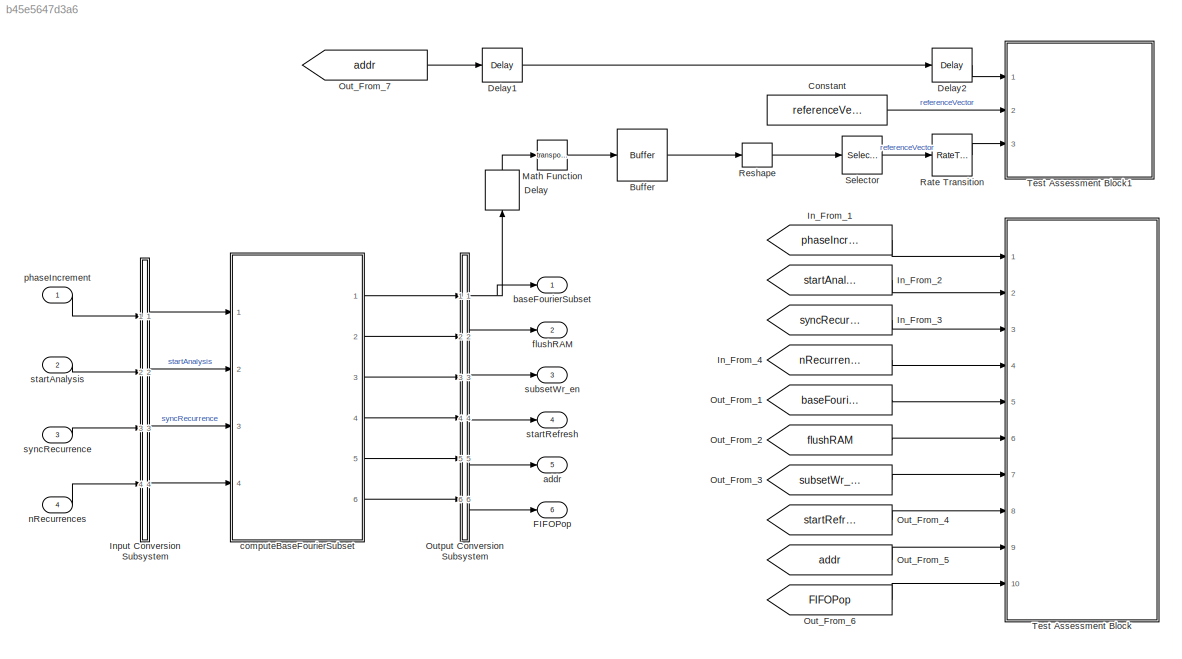
MODEL slx_b45e5647d3a6
KIND model
CONFIG AbsTol = auto
CONFIG EnableMultiTasking = off
CONFIG FixedStep = auto
CONFIG InitFcn = referenceVector = getBaseFourierSubset(nRecurrences, nFilters);
CONFIG MaxStep = auto
CONFIG MinStep = auto
CONFIG RelTol = 1e-3
CONFIG SampleTimeConstraint = Unconstrained
CONFIG Solver = FixedStepDiscrete
CONFIG SolverName = FixedStepDiscrete
CONFIG StartTime = 0.0
CONFIG StopTime = simulationTime/3
BLOCK [Buffer] Buffer
  N = oversamplingFactor
  OutputFrames = off
BLOCK [Constant] Constant
  SampleTime = -1
  Value = referenceVector
BLOCK [Delay] Delay
  DelayLength = 19
  InputPortMap = u0
  Ports = [1, 1]
BLOCK [Delay] Delay1
  DelayLength = 20
  InputPortMap = u0
  Ports = [1, 1]
BLOCK [Delay] Delay2
  DelayLength = 20
  InputPortMap = u0
  Ports = [1, 1]
BLOCK [Outport] FIFOPop
  IconDisplay = Port number
  OutDataTypeStr = boolean
  Port = 6
  PortDimensions = [1]
  SignalType = real
  VarSizeSig = No
BLOCK [From] In_From_1
  GotoTag = phaseIncrement
  TagVisibility = global
BLOCK [From] In_From_2
  GotoTag = startAnalysis
  TagVisibility = global
BLOCK [From] In_From_3
  GotoTag = syncRecurrence
  TagVisibility = global
BLOCK [From] In_From_4
  GotoTag = nRecurrences
  TagVisibility = global
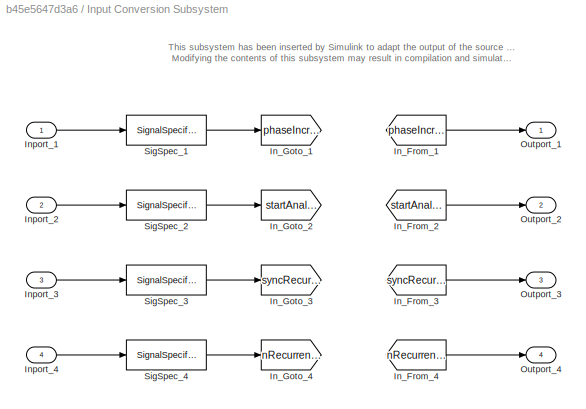
BLOCK [SubSystem] Input Conversion Subsystem
  AttributesFormatString = %<Description>
  Description = Signal spec.\nand routing
  Permissions = ReadOnly
  PermitHierarchicalResolution = ExplicitOnly
  Ports = [4, 4]
  RequestExecContextInheritance = off
  Tag = __SLT_ICS__
  UserDataPersistent = on
  Variant = off
BLOCK [From] Input Conversion Subsystem/In_From_1
  GotoTag = phaseIncrement
  TagVisibility = global
BLOCK [From] Input Conversion Subsystem/In_From_2
  GotoTag = startAnalysis
  TagVisibility = global
BLOCK [From] Input Conversion Subsystem/In_From_3
  GotoTag = syncRecurrence
  TagVisibility = global
BLOCK [From] Input Conversion Subsystem/In_From_4
  GotoTag = nRecurrences
  TagVisibility = global
BLOCK [Goto] Input Conversion Subsystem/In_Goto_1
  GotoTag = phaseIncrement
  TagVisibility = global
BLOCK [Goto] Input Conversion Subsystem/In_Goto_2
  GotoTag = startAnalysis
  TagVisibility = global
BLOCK [Goto] Input Conversion Subsystem/In_Goto_3
  GotoTag = syncRecurrence
  TagVisibility = global
BLOCK [Goto] Input Conversion Subsystem/In_Goto_4
  GotoTag = nRecurrences
  TagVisibility = global
BLOCK [Inport] Input Conversion Subsystem/Inport_1
  IconDisplay = Port number
BLOCK [Inport] Input Conversion Subsystem/Inport_2
  IconDisplay = Port number
  Port = 2
BLOCK [Inport] Input Conversion Subsystem/Inport_3
  IconDisplay = Port number
  Port = 3
BLOCK [Inport] Input Conversion Subsystem/Inport_4
  IconDisplay = Port number
  Port = 4
BLOCK [Outport] Input Conversion Subsystem/Outport_1
  IconDisplay = Port number
BLOCK [Outport] Input Conversion Subsystem/Outport_2
  IconDisplay = Port number
  Port = 2
BLOCK [Outport] Input Conversion Subsystem/Outport_3
  IconDisplay = Port number
  Port = 3
BLOCK [Outport] Input Conversion Subsystem/Outport_4
  IconDisplay = Port number
  Port = 4
BLOCK [SignalSpecification] Input Conversion Subsystem/SigSpec_1
  Dimensions = [1]
  OutDataTypeStr = fixdt('ufix16_En20')
  SampleTime = 4e-09
  SignalType = real
  VarSizeSig = No
BLOCK [SignalSpecification] Input Conversion Subsystem/SigSpec_2
  Dimensions = [1]
  OutDataTypeStr = boolean
  SampleTime = 4e-09
  SignalType = real
  VarSizeSig = No
BLOCK [SignalSpecification] Input Conversion Subsystem/SigSpec_3
  Dimensions = [1]
  OutDataTypeStr = boolean
  SampleTime = 4e-09
  SignalType = real
  VarSizeSig = No
BLOCK [SignalSpecification] Input Conversion Subsystem/SigSpec_4
  Dimensions = [1]
  OutDataTypeStr = fixdt('ufix10')
  SampleTime = 4e-09
  SignalType = real
  VarSizeSig = No
BLOCK [Math] Math Function
  Operator = transpose
  Ports = [1, 1]
BLOCK [From] Out_From_1
  GotoTag = baseFourierSubset
  TagVisibility = global
BLOCK [From] Out_From_2
  GotoTag = flushRAM
  TagVisibility = global
BLOCK [From] Out_From_3
  GotoTag = subsetWr_en
  TagVisibility = global
BLOCK [From] Out_From_4
  GotoTag = startRefresh
  TagVisibility = global
BLOCK [From] Out_From_5
  GotoTag = addr
  TagVisibility = global
BLOCK [From] Out_From_6
  GotoTag = FIFOPop
  TagVisibility = global
BLOCK [From] Out_From_7
  GotoTag = addr
  TagVisibility = global
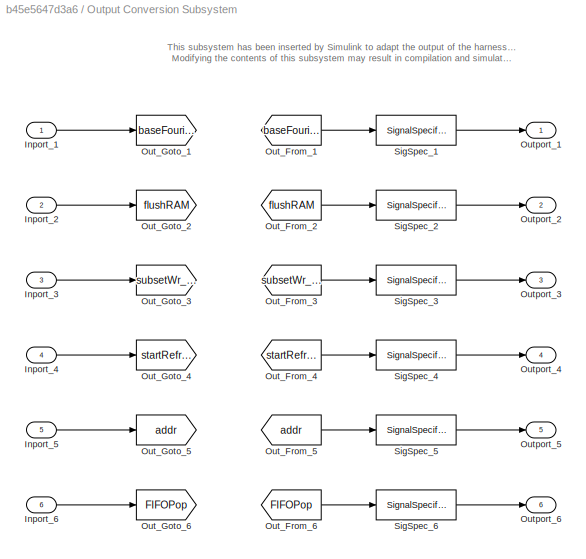
BLOCK [SubSystem] Output Conversion Subsystem
  AttributesFormatString = %<Description>
  Description = Signal spec.\nand routing
  Permissions = ReadOnly
  PermitHierarchicalResolution = ExplicitOnly
  Ports = [6, 6]
  RequestExecContextInheritance = off
  Tag = __SLT_OCS__
  UserDataPersistent = on
  Variant = off
BLOCK [Inport] Output Conversion Subsystem/Inport_1
  IconDisplay = Port number
BLOCK [Inport] Output Conversion Subsystem/Inport_2
  IconDisplay = Port number
  Port = 2
BLOCK [Inport] Output Conversion Subsystem/Inport_3
  IconDisplay = Port number
  Port = 3
BLOCK [Inport] Output Conversion Subsystem/Inport_4
  IconDisplay = Port number
  Port = 4
BLOCK [Inport] Output Conversion Subsystem/Inport_5
  IconDisplay = Port number
  Port = 5
BLOCK [Inport] Output Conversion Subsystem/Inport_6
  IconDisplay = Port number
  Port = 6
BLOCK [From] Output Conversion Subsystem/Out_From_1
  GotoTag = baseFourierSubset
  TagVisibility = global
BLOCK [From] Output Conversion Subsystem/Out_From_2
  GotoTag = flushRAM
  TagVisibility = global
BLOCK [From] Output Conversion Subsystem/Out_From_3
  GotoTag = subsetWr_en
  TagVisibility = global
BLOCK [From] Output Conversion Subsystem/Out_From_4
  GotoTag = startRefresh
  TagVisibility = global
BLOCK [From] Output Conversion Subsystem/Out_From_5
  GotoTag = addr
  TagVisibility = global
BLOCK [From] Output Conversion Subsystem/Out_From_6
  GotoTag = FIFOPop
  TagVisibility = global
BLOCK [Goto] Output Conversion Subsystem/Out_Goto_1
  GotoTag = baseFourierSubset
  TagVisibility = global
BLOCK [Goto] Output Conversion Subsystem/Out_Goto_2
  GotoTag = flushRAM
  TagVisibility = global
BLOCK [Goto] Output Conversion Subsystem/Out_Goto_3
  GotoTag = subsetWr_en
  TagVisibility = global
BLOCK [Goto] Output Conversion Subsystem/Out_Goto_4
  GotoTag = startRefresh
  TagVisibility = global
BLOCK [Goto] Output Conversion Subsystem/Out_Goto_5
  GotoTag = addr
  TagVisibility = global
BLOCK [Goto] Output Conversion Subsystem/Out_Goto_6
  GotoTag = FIFOPop
  TagVisibility = global
BLOCK [Outport] Output Conversion Subsystem/Outport_1
  IconDisplay = Port number
BLOCK [Outport] Output Conversion Subsystem/Outport_2
  IconDisplay = Port number
  Port = 2
BLOCK [Outport] Output Conversion Subsystem/Outport_3
  IconDisplay = Port number
  Port = 3
BLOCK [Outport] Output Conversion Subsystem/Outport_4
  IconDisplay = Port number
  Port = 4
BLOCK [Outport] Output Conversion Subsystem/Outport_5
  IconDisplay = Port number
  Port = 5
BLOCK [Outport] Output Conversion Subsystem/Outport_6
  IconDisplay = Port number
  Port = 6
BLOCK [SignalSpecification] Output Conversion Subsystem/SigSpec_1
  Dimensions = [6, 1]
  OutDataTypeStr = single
  SampleTime = 4e-09
  SignalType = complex
  VarSizeSig = No
BLOCK [SignalSpecification] Output Conversion Subsystem/SigSpec_2
  Dimensions = [1]
  OutDataTypeStr = boolean
  SampleTime = 4e-09
  SignalType = real
  VarSizeSig = No
BLOCK [SignalSpecification] Output Conversion Subsystem/SigSpec_3
  Dimensions = [1]
  OutDataTypeStr = boolean
  SampleTime = 4e-09
  SignalType = real
  VarSizeSig = No
BLOCK [SignalSpecification] Output Conversion Subsystem/SigSpec_4
  Dimensions = [1]
  OutDataTypeStr = boolean
  SampleTime = 4e-09
  SignalType = real
  VarSizeSig = No
BLOCK [SignalSpecification] Output Conversion Subsystem/SigSpec_5
  Dimensions = [1]
  OutDataTypeStr = uint8
  SampleTime = 4e-09
  SignalType = real
  VarSizeSig = No
BLOCK [SignalSpecification] Output Conversion Subsystem/SigSpec_6
  Dimensions = [1]
  OutDataTypeStr = boolean
  SampleTime = 4e-09
  SignalType = real
  VarSizeSig = No
BLOCK [RateTransition] Rate Transition
BLOCK [Reshape] Reshape
  Ports = [1, 1]
BLOCK [Selector] Selector
  IndexOptions = Index vector (dialog)
  Indices = (1:floor((nFilters-1)/2 + 1))
  InputPortWidth = ceil(nFilters/2/oversamplingFactor)*oversamplingFactor
  OutputSizes = 1
  Ports = [1, 1]
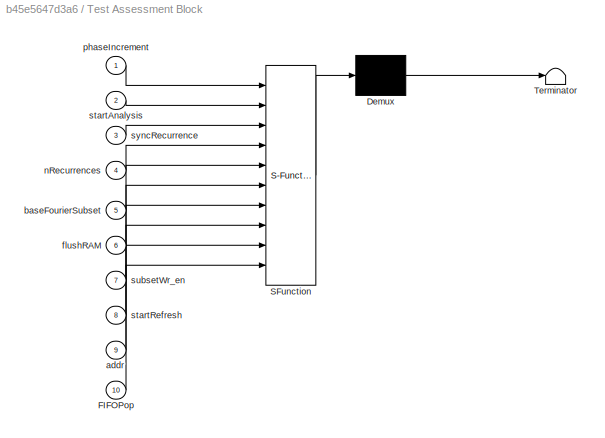
BLOCK [SubSystem] Test Assessment Block
  ErrorFcn = Stateflow.Translate.translate
  PermitHierarchicalResolution = ExplicitOnly
  Ports = [10]
  RequestExecContextInheritance = off
  SFBlockType = Test Sequence
  ShowPortLabels = none
  Tag = __SLT_ASMT__
  TreatAsAtomicUnit = on
  Variant = off
BLOCK [Demux] Test Assessment Block/ Demux 
  Outputs = 1
  Ports = [1, 1]
BLOCK [S-Function] Test Assessment Block/ SFunction 
  EnableBusSupport = on
  FunctionName = sf_sfun
  PortCounts = [10 1]
  Ports = [10, 1]
  SFcnIsStateOwnerBlock = off
  SFunctionDeploymentMode = off
  Tag = Stateflow S-Function Harness_computeBaseFourierSubset 1
BLOCK [Terminator] Test Assessment Block/ Terminator 
BLOCK [Inport] Test Assessment Block/FIFOPop
  IconDisplay = Port number
  Port = 10
BLOCK [Inport] Test Assessment Block/addr
  IconDisplay = Port number
  Port = 9
BLOCK [Inport] Test Assessment Block/baseFourierSubset
  IconDisplay = Port number
  Port = 5
BLOCK [Inport] Test Assessment Block/flushRAM
  IconDisplay = Port number
  Port = 6
BLOCK [Inport] Test Assessment Block/nRecurrences
  IconDisplay = Port number
  Port = 4
BLOCK [Inport] Test Assessment Block/phaseIncrement
  IconDisplay = Port number
BLOCK [Inport] Test Assessment Block/startAnalysis
  IconDisplay = Port number
  Port = 2
BLOCK [Inport] Test Assessment Block/startRefresh
  IconDisplay = Port number
  Port = 8
BLOCK [Inport] Test Assessment Block/subsetWr_en
  IconDisplay = Port number
  Port = 7
BLOCK [Inport] Test Assessment Block/syncRecurrence
  IconDisplay = Port number
  Port = 3
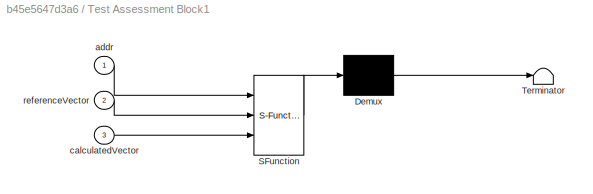
BLOCK [SubSystem] Test Assessment Block1
  ErrorFcn = Stateflow.Translate.translate
  PermitHierarchicalResolution = ExplicitOnly
  Ports = [3]
  RequestExecContextInheritance = off
  SFBlockType = Test Sequence
  ShowPortLabels = none
  Tag = __SLT_ASMT__
  TreatAsAtomicUnit = on
  Variant = off
BLOCK [Demux] Test Assessment Block1/ Demux 
  Outputs = 1
  Ports = [1, 1]
BLOCK [S-Function] Test Assessment Block1/ SFunction 
  EnableBusSupport = on
  FunctionName = sf_sfun
  Parameters = nFilters,sizeRAMs
  PortCounts = [3 1]
  Ports = [3, 1]
  SFcnIsStateOwnerBlock = off
  SFunctionDeploymentMode = off
  Tag = Stateflow S-Function Harness_computeBaseFourierSubset 4
BLOCK [Terminator] Test Assessment Block1/ Terminator 
BLOCK [Inport] Test Assessment Block1/addr
  IconDisplay = Port number
BLOCK [Inport] Test Assessment Block1/calculatedVector
  IconDisplay = Port number
  Port = 3
BLOCK [Inport] Test Assessment Block1/referenceVector
  IconDisplay = Port number
  Port = 2
BLOCK [Outport] addr
  IconDisplay = Port number
  OutDataTypeStr = uint8
  Port = 5
  PortDimensions = [1]
  SignalType = real
  VarSizeSig = No
BLOCK [Outport] baseFourierSubset
  IconDisplay = Port number
  OutDataTypeStr = single
  PortDimensions = [6, 1]
  SignalType = complex
  VarSizeSig = No
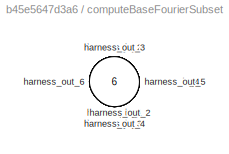
BLOCK [SubSystem] computeBaseFourierSubset
  Ports = [4, 6]
  RequestExecContextInheritance = off
  Tag = __SL_testing_harness_stub_
  Variant = off
BLOCK [Inport] computeBaseFourierSubset/harness_in_1
  IconDisplay = Port number
BLOCK [Inport] computeBaseFourierSubset/harness_in_2
  IconDisplay = Port number
  Port = 2
BLOCK [Inport] computeBaseFourierSubset/harness_in_3
  IconDisplay = Port number
  Port = 3
BLOCK [Inport] computeBaseFourierSubset/harness_in_4
  IconDisplay = Port number
  Port = 4
BLOCK [Outport] computeBaseFourierSubset/harness_out_1
  IconDisplay = Port number
BLOCK [Outport] computeBaseFourierSubset/harness_out_2
  IconDisplay = Port number
  Port = 2
BLOCK [Outport] computeBaseFourierSubset/harness_out_3
  IconDisplay = Port number
  Port = 3
BLOCK [Outport] computeBaseFourierSubset/harness_out_4
  IconDisplay = Port number
  Port = 4
BLOCK [Outport] computeBaseFourierSubset/harness_out_5
  IconDisplay = Port number
  Port = 5
BLOCK [Outport] computeBaseFourierSubset/harness_out_6
  IconDisplay = Port number
  Port = 6
BLOCK [Outport] flushRAM
  IconDisplay = Port number
  OutDataTypeStr = boolean
  Port = 2
  PortDimensions = [1]
  SignalType = real
  VarSizeSig = No
BLOCK [Inport] nRecurrences
  IconDisplay = Port number
  Interpolate = off
  OutDataTypeStr = fixdt('ufix10')
  Port = 4
  PortDimensions = [1]
  SampleTime = 4e-09
  SignalType = real
  VarSizeSig = No
BLOCK [Inport] phaseIncrement
  IconDisplay = Port number
  Interpolate = off
  OutDataTypeStr = fixdt('ufix16_En20')
  PortDimensions = [1]
  SampleTime = 4e-09
  SignalType = real
  VarSizeSig = No
BLOCK [Inport] startAnalysis
  IconDisplay = Port number
  OutDataTypeStr = boolean
  Port = 2
  PortDimensions = [1]
  SampleTime = 4e-09
  SignalType = real
  VarSizeSig = No
BLOCK [Outport] startRefresh
  IconDisplay = Port number
  OutDataTypeStr = boolean
  Port = 4
  PortDimensions = [1]
  SignalType = real
  VarSizeSig = No
BLOCK [Outport] subsetWr_en
  IconDisplay = Port number
  OutDataTypeStr = boolean
  Port = 3
  PortDimensions = [1]
  SignalType = real
  VarSizeSig = No
BLOCK [Inport] syncRecurrence
  IconDisplay = Port number
  OutDataTypeStr = boolean
  Port = 3
  PortDimensions = [1]
  SampleTime = 4e-09
  SignalType = real
  VarSizeSig = No
ANNOTATION Input Conversion Subsystem: This subsystem has been inserted by Simulink to adapt the output of the source blocks to the interface required by the harnessed component. Modifying the contents of this subsystem may result in compilation and simulation failure.
ANNOTATION Output Conversion Subsystem: This subsystem has been inserted by Simulink to adapt the output of the harnessed component to the interface required by the sink blocks. Modifying the contents of this subsystem may result in compilation and simulation failure.
LINE Buffer:1 -> Reshape:1
LINE Constant:1 -> Test Assessment Block1:2
LINE Delay1:1 -> Delay2:1
LINE Delay2:1 -> Test Assessment Block1:1
LINE Delay:1 -> Math Function:1
LINE In_From_1:1 -> Test Assessment Block:1
LINE In_From_2:1 -> Test Assessment Block:2
LINE In_From_3:1 -> Test Assessment Block:3
LINE In_From_4:1 -> Test Assessment Block:4
LINE Input Conversion Subsystem/In_From_1:1 -> Input Conversion Subsystem/Outport_1:1
LINE Input Conversion Subsystem/In_From_2:1 -> Input Conversion Subsystem/Outport_2:1
LINE Input Conversion Subsystem/In_From_3:1 -> Input Conversion Subsystem/Outport_3:1
LINE Input Conversion Subsystem/In_From_4:1 -> Input Conversion Subsystem/Outport_4:1
LINE Input Conversion Subsystem/Inport_1:1 -> Input Conversion Subsystem/SigSpec_1:1
LINE Input Conversion Subsystem/Inport_2:1 -> Input Conversion Subsystem/SigSpec_2:1
LINE Input Conversion Subsystem/Inport_3:1 -> Input Conversion Subsystem/SigSpec_3:1
LINE Input Conversion Subsystem/Inport_4:1 -> Input Conversion Subsystem/SigSpec_4:1
LINE Input Conversion Subsystem/SigSpec_1:1 -> Input Conversion Subsystem/In_Goto_1:1
LINE Input Conversion Subsystem/SigSpec_2:1 -> Input Conversion Subsystem/In_Goto_2:1
LINE Input Conversion Subsystem/SigSpec_3:1 -> Input Conversion Subsystem/In_Goto_3:1
LINE Input Conversion Subsystem/SigSpec_4:1 -> Input Conversion Subsystem/In_Goto_4:1
LINE Input Conversion Subsystem:1 -> computeBaseFourierSubset:1
LINE Input Conversion Subsystem:2 -> computeBaseFourierSubset:2
LINE Input Conversion Subsystem:3 -> computeBaseFourierSubset:3
LINE Input Conversion Subsystem:4 -> computeBaseFourierSubset:4
LINE Math Function:1 -> Buffer:1
LINE Out_From_1:1 -> Test Assessment Block:5
LINE Out_From_2:1 -> Test Assessment Block:6
LINE Out_From_3:1 -> Test Assessment Block:7
LINE Out_From_4:1 -> Test Assessment Block:8
LINE Out_From_5:1 -> Test Assessment Block:9
LINE Out_From_6:1 -> Test Assessment Block:10
LINE Out_From_7:1 -> Delay1:1
LINE Output Conversion Subsystem/Inport_1:1 -> Output Conversion Subsystem/Out_Goto_1:1
LINE Output Conversion Subsystem/Inport_2:1 -> Output Conversion Subsystem/Out_Goto_2:1
LINE Output Conversion Subsystem/Inport_3:1 -> Output Conversion Subsystem/Out_Goto_3:1
LINE Output Conversion Subsystem/Inport_4:1 -> Output Conversion Subsystem/Out_Goto_4:1
LINE Output Conversion Subsystem/Inport_5:1 -> Output Conversion Subsystem/Out_Goto_5:1
LINE Output Conversion Subsystem/Inport_6:1 -> Output Conversion Subsystem/Out_Goto_6:1
LINE Output Conversion Subsystem/Out_From_1:1 -> Output Conversion Subsystem/SigSpec_1:1
LINE Output Conversion Subsystem/Out_From_2:1 -> Output Conversion Subsystem/SigSpec_2:1
LINE Output Conversion Subsystem/Out_From_3:1 -> Output Conversion Subsystem/SigSpec_3:1
LINE Output Conversion Subsystem/Out_From_4:1 -> Output Conversion Subsystem/SigSpec_4:1
LINE Output Conversion Subsystem/Out_From_5:1 -> Output Conversion Subsystem/SigSpec_5:1
LINE Output Conversion Subsystem/Out_From_6:1 -> Output Conversion Subsystem/SigSpec_6:1
LINE Output Conversion Subsystem/SigSpec_1:1 -> Output Conversion Subsystem/Outport_1:1
LINE Output Conversion Subsystem/SigSpec_2:1 -> Output Conversion Subsystem/Outport_2:1
LINE Output Conversion Subsystem/SigSpec_3:1 -> Output Conversion Subsystem/Outport_3:1
LINE Output Conversion Subsystem/SigSpec_4:1 -> Output Conversion Subsystem/Outport_4:1
LINE Output Conversion Subsystem/SigSpec_5:1 -> Output Conversion Subsystem/Outport_5:1
LINE Output Conversion Subsystem/SigSpec_6:1 -> Output Conversion Subsystem/Outport_6:1
NET Output Conversion Subsystem:1 -> Delay:1, baseFourierSubset:1
LINE Output Conversion Subsystem:2 -> flushRAM:1
LINE Output Conversion Subsystem:3 -> subsetWr_en:1
LINE Output Conversion Subsystem:4 -> startRefresh:1
LINE Output Conversion Subsystem:5 -> addr:1
LINE Output Conversion Subsystem:6 -> FIFOPop:1
LINE Rate Transition:1 -> Test Assessment Block1:3
LINE Reshape:1 -> Selector:1
LINE Selector:1 -> Rate Transition:1
LINE computeBaseFourierSubset:1 -> Output Conversion Subsystem:1
LINE computeBaseFourierSubset:2 -> Output Conversion Subsystem:2
LINE computeBaseFourierSubset:3 -> Output Conversion Subsystem:3
LINE computeBaseFourierSubset:4 -> Output Conversion Subsystem:4
LINE computeBaseFourierSubset:5 -> Output Conversion Subsystem:5
LINE computeBaseFourierSubset:6 -> Output Conversion Subsystem:6
LINE nRecurrences:1 -> Input Conversion Subsystem:4
LINE phaseIncrement:1 -> Input Conversion Subsystem:1
LINE startAnalysis:1 -> Input Conversion Subsystem:2
LINE syncRecurrence:1 -> Input Conversion Subsystem:3
note: NET lines group one-source signal fan-out (src -> all destinations, sorted); 1:1 wires keep LINE
CHART Test Assessment Block states=3 transitions=10
  STATE_LABEL 'Run\n\n'
  STATE_LABEL 'step_1_1'
  STATE_LABEL 'step_1_2'
  STATE_LABEL '[t < 5]'
  STATE_LABEL '[~in(step_1_1)]'
  STATE_LABEL '[~in(step_1_2)]'
  STATE_LABEL 'step_1_1'
  STATE_LABEL 'step_1_2'
CHART Test Assessment Block1 states=3 transitions=10
  STATE_LABEL 'Run\ntolerance = 1e-6;\n'
  STATE_LABEL 'baseFourierSubsetVerification\n\nverify(all(referenceVector - tolerance <= calculatedVector)   &&  all(referenceVector + tolerance >= calculatedVector));'
  STATE_LABEL 'idle '
  STATE_LABEL '[~in(baseFourierSubsetVerification)]'
  STATE_LABEL '[addr == sizeRAMs-1\n]'
  STATE_LABEL '[~in(idle)]'
  STATE_LABEL 'baseFourierSubsetVerification\n\nverify(all(referenceVector - tolerance <= calculatedVector)   &&  all(referenceVector + tolerance >= calculatedVector));'
  STATE_LABEL 'idle '
